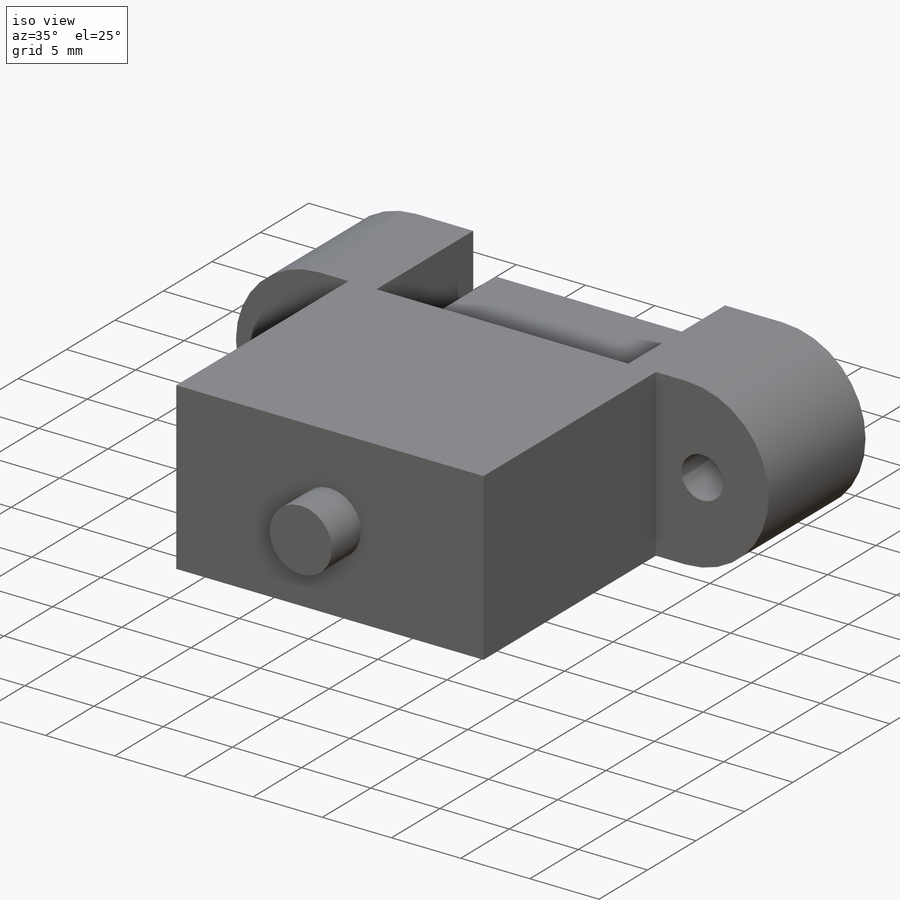
[diagram: iso view]
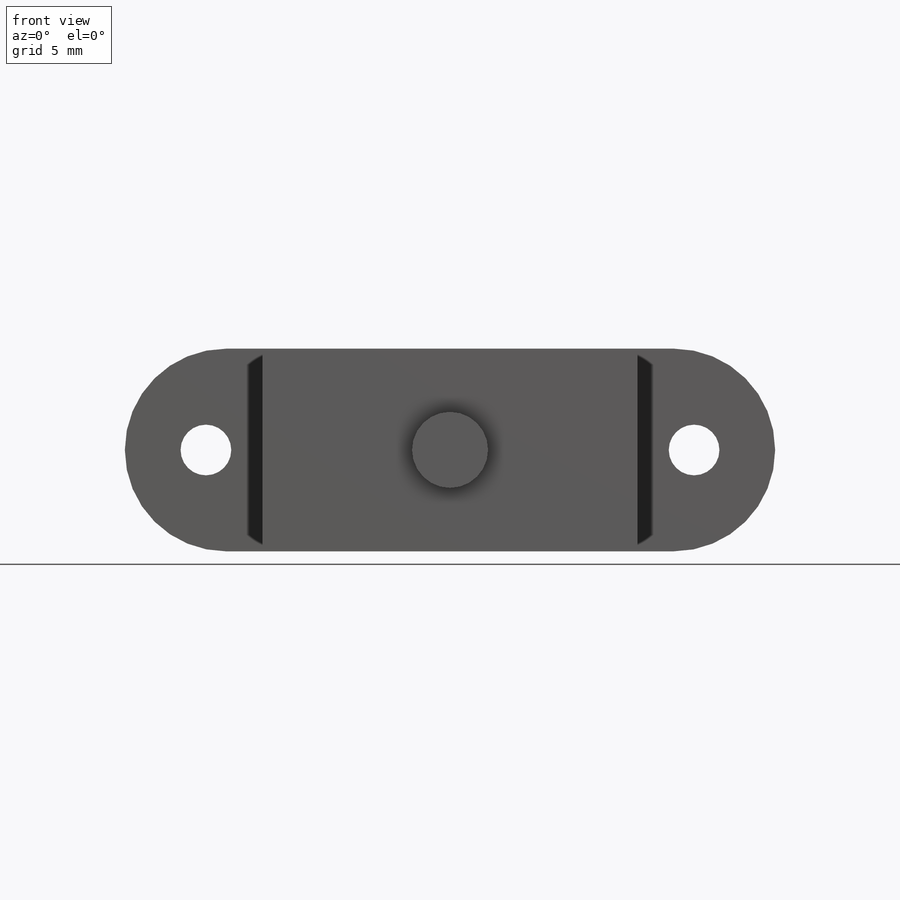
[diagram: front view]
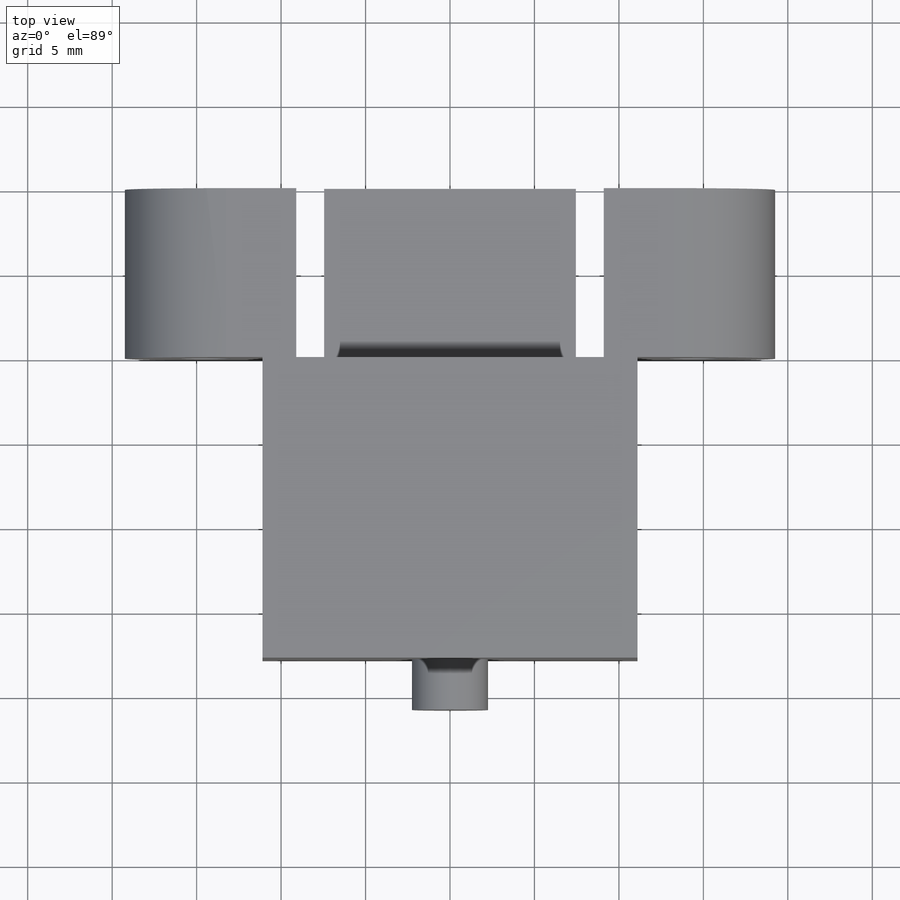
[diagram: top view]
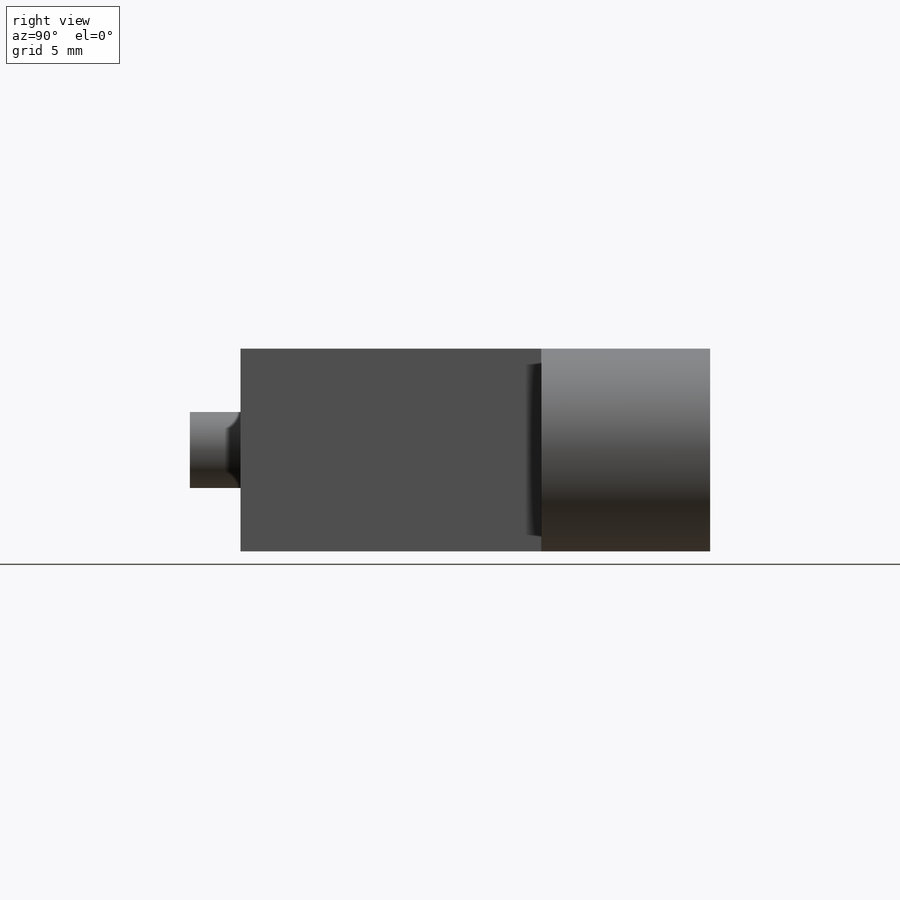
[diagram: right view]
SOLIDWORKS PART (.sldprt)
format: sldprt  version: not decoded by parser v0  size: 236,544 bytes
history: native  units: mm
features: sketch x5, extrude x4, plane x3, material x1, cut_extrude x1 (+13 scaffold rows collapsed)
feature tree (27):
  scaffold x13  (default folders/planes/origin — collapsed)
  material  "Material <sin especificar>"
  plane  "Alzado"
  plane  "Planta"
  plane  "Vista lateral"
  sketch  "Croquis1"  dims[c1.D4=5.1mm c1.D6=3.0mm c1.D1=38.5mm c1.D2=12.0mm c1.D3=18.2mm c1.D5=34.0mm c2.D6=28.9mm]
  extrude  "Saliente-Extruir1"  Depth=10mm
  sketch  "Croquis2"  dims[D1=2.0mm]
  extrude  "Saliente-Extruir2"  Depth=17.8mm
  sketch  "Croquis3"  dims[D1=4.5mm]
  extrude  "Saliente-Extruir3"  Depth=3mm
  sketch  "Croquis4"  dims[D1=6.9mm D2=14.9mm]
  extrude  "Saliente-Extruir4"  [1 undecoded]
  sketch  "Croquis5"  dims[D1=1.83mm D2=10.8mm D3=1.0mm D4=1.0mm]
  cut_extrude  "Cortar-Extruir1"  Depth=10.5mm
decode coverage: 9 of 10 modeling features carry decoded parameters
note: 1 parameter value undecoded
note: suppression state not decoded; provenance and decode notes live in map.json
